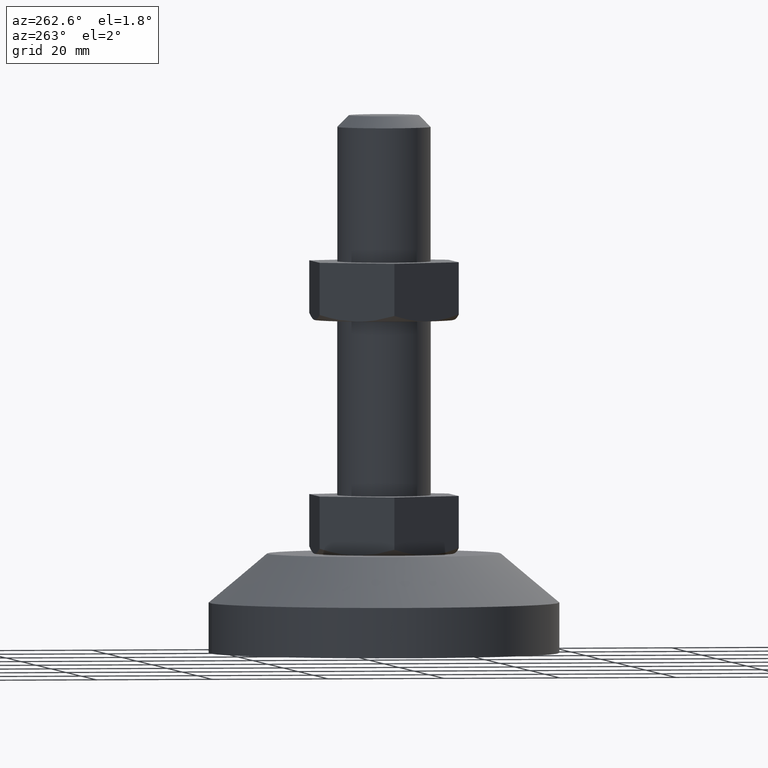
[diagram: clean part render]
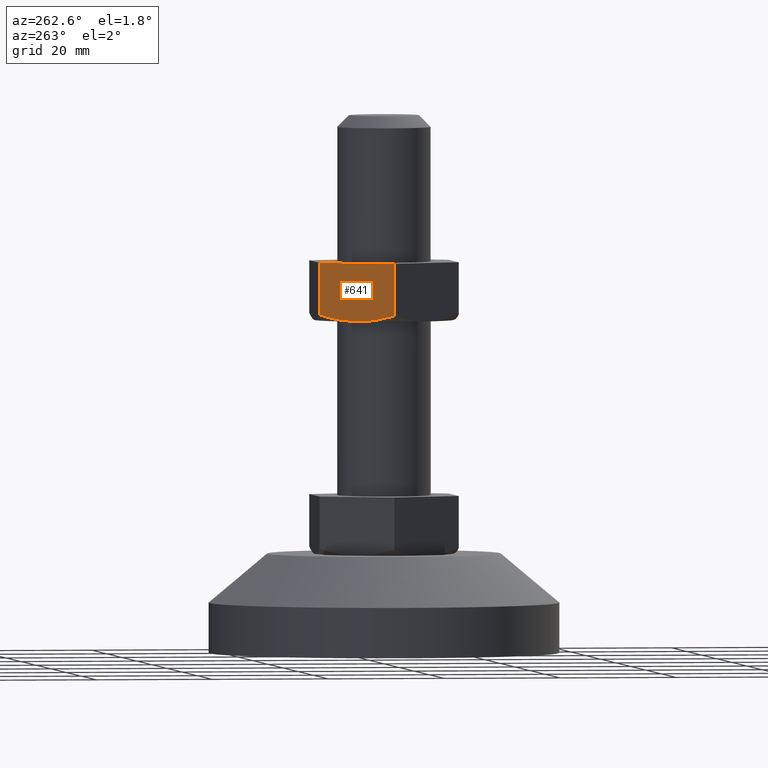
[diagram: same view with one face highlighted and labeled with its STEP entity id]
A machine part, auxiliary view. The second image highlights one B-rep face of the part: STEP entity #641.
In plain terms, the highlighted face is a freeform B-spline surface patch.
Its self-contained STEP definition (entity closure, byte-faithful):
#222=CARTESIAN_POINT('',(-13.850000000000000,1.738792E-015,58.071796703249603));
#223=VERTEX_POINT('',#222);
#243=CARTESIAN_POINT('',(-10.332761280343080,6.092036745725437,57.000784531430028));
#244=VERTEX_POINT('',#243);
#245=CARTESIAN_POINT('',(-10.332761280343080,6.092036745725437,57.000784531430028));
#246=CARTESIAN_POINT('',(-10.348248742628030,6.065211671648640,57.000620761392703));
#247=CARTESIAN_POINT('',(-10.363741200486190,6.038377944983872,57.000526430156327));
#248=CARTESIAN_POINT('',(-10.526498720989130,5.756473623675535,57.000267547939131));
#249=CARTESIAN_POINT('',(-10.674505143075480,5.500118956641886,57.006343869094529));
#250=CARTESIAN_POINT('',(-10.969168994463550,4.989746146736672,57.030921325750477));
#251=CARTESIAN_POINT('',(-11.115989092811301,4.735446252786312,57.049394064814130));
#252=CARTESIAN_POINT('',(-11.554980302967330,3.975091100697527,57.122562089201423));
#253=CARTESIAN_POINT('',(-11.845678887180810,3.471586335266033,57.195048777272440));
#254=CARTESIAN_POINT('',(-12.712599404911600,1.970035809117727,57.475037169589370));
#255=CARTESIAN_POINT('',(-13.283666257645820,0.980918910574619,57.744823695343079));
#256=CARTESIAN_POINT('',(-13.850000000000000,1.738792E-015,58.071796703249603));
#257=B_SPLINE_CURVE_WITH_KNOTS('',3,(#245,#246,#247,#248,#249,#250,#251,#252,#253,#254,#255,#256),.UNSPECIFIED.,.F.,.U.,(4,2,2,2,2,4),(0.493422575025969,0.500000000000001,0.562500000000001,0.625000000000001,0.750000000000001,1.0),.UNSPECIFIED.);
#258=EDGE_CURVE('',#244,#223,#257,.T.);
#288=CARTESIAN_POINT('',(-6.921797000000001,12.0,58.073646796981201));
#289=VERTEX_POINT('',#288);
#290=CARTESIAN_POINT('',(-6.921797000000001,12.0,58.073646796981201));
#291=CARTESIAN_POINT('',(-7.487395772383763,11.020354220992729,57.746871651787977));
#292=CARTESIAN_POINT('',(-8.057123296092774,10.033557234639050,57.477486419747699));
#293=CARTESIAN_POINT('',(-8.920641063569475,8.537900634298252,57.197487253449417));
#294=CARTESIAN_POINT('',(-9.209971671414120,8.036765336614765,57.124884088512133));
#295=CARTESIAN_POINT('',(-9.776695725459524,7.055170510686362,57.029190962181453));
#296=CARTESIAN_POINT('',(-10.053918824480220,6.575006032423768,57.003733163856303));
#297=CARTESIAN_POINT('',(-10.332761280343080,6.092036745725437,57.000784531430028));
#298=B_SPLINE_CURVE_WITH_KNOTS('',3,(#290,#291,#292,#293,#294,#295,#296,#297),.UNSPECIFIED.,.F.,.U.,(4,2,2,4),(0.0,0.250000000000000,0.375000000000001,0.493422575025969),.UNSPECIFIED.);
#299=EDGE_CURVE('',#289,#244,#298,.T.);
#493=CARTESIAN_POINT('',(-13.850000000000000,0.0,67.0));
#494=VERTEX_POINT('',#493);
#495=CARTESIAN_POINT('',(-6.921797000000001,12.0,67.0));
#496=VERTEX_POINT('',#495);
#497=CARTESIAN_POINT('',(-13.850000000000000,0.0,67.0));
#498=CARTESIAN_POINT('',(-6.921797000000001,12.0,67.0));
#499=QUASI_UNIFORM_CURVE('',1,(#497,#498),.UNSPECIFIED.,.F.,.U.);
#500=EDGE_CURVE('',#494,#496,#499,.T.);
#549=CARTESIAN_POINT('',(-13.850000000000000,0.0,67.0));
#550=CARTESIAN_POINT('',(-13.850000000000000,1.738792E-015,58.071796703249603));
#551=QUASI_UNIFORM_CURVE('',1,(#549,#550),.UNSPECIFIED.,.F.,.U.);
#552=EDGE_CURVE('',#494,#223,#551,.T.);
#620=CARTESIAN_POINT('',(-6.921797000000001,12.0,67.0));
#621=CARTESIAN_POINT('',(-6.921797000000001,12.0,58.073646796981201));
#622=QUASI_UNIFORM_CURVE('',1,(#620,#621),.UNSPECIFIED.,.F.,.U.);
#623=EDGE_CURVE('',#496,#289,#622,.T.);
#629=CARTESIAN_POINT('',(-6.575733273578202,12.599399976741671,56.501323718677511));
#630=CARTESIAN_POINT('',(-14.196063912250681,-0.599400298606752,56.501323718677511));
#631=CARTESIAN_POINT('',(-6.575733273578202,12.599399976741671,67.499461062408344));
#632=CARTESIAN_POINT('',(-14.196063912250681,-0.599400298606752,67.499461062408344));
#633=B_SPLINE_SURFACE_WITH_KNOTS('',1,1,((#629,#631),(#630,#632)),.UNSPECIFIED.,.F.,.F.,.U.,(2,2),(2,2),(0.0,15.240661657265020),(0.0,10.998137343730830),.UNSPECIFIED.);
#634=ORIENTED_EDGE('',*,*,#623,.T.);
#635=ORIENTED_EDGE('',*,*,#299,.T.);
#636=ORIENTED_EDGE('',*,*,#258,.T.);
#637=ORIENTED_EDGE('',*,*,#552,.F.);
#638=ORIENTED_EDGE('',*,*,#500,.T.);
#639=EDGE_LOOP('',(#634,#635,#636,#637,#638));
#640=FACE_OUTER_BOUND('',#639,.T.);
#641=ADVANCED_FACE('',(#640),#633,.T.);